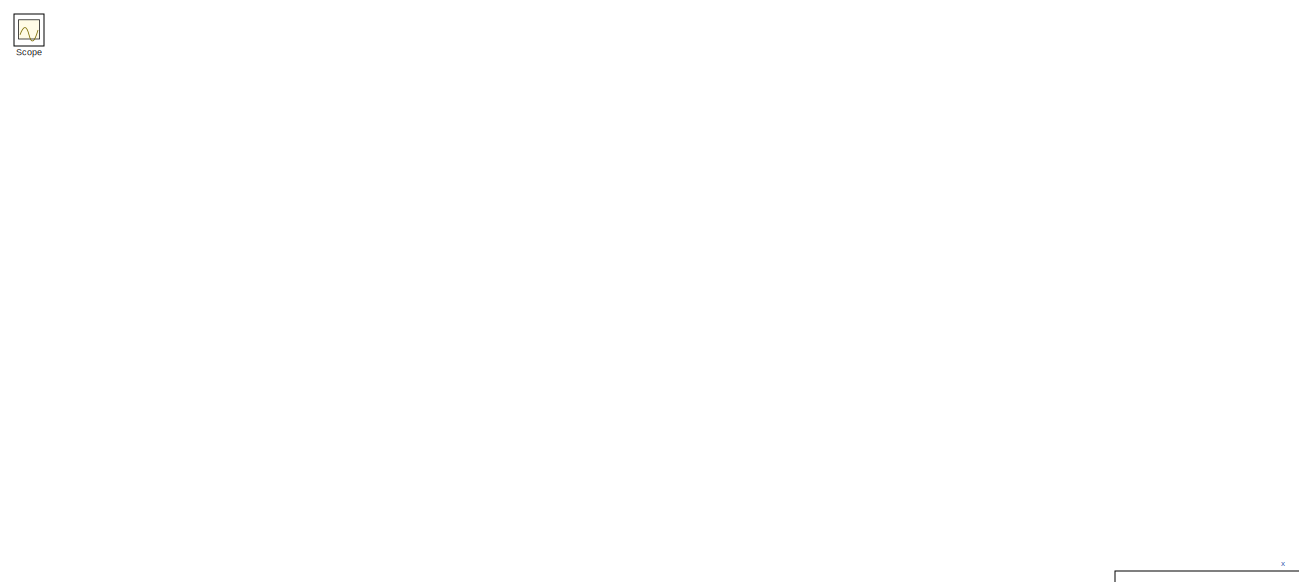
[diagram: root canvas - part 1/2, full width, top band]
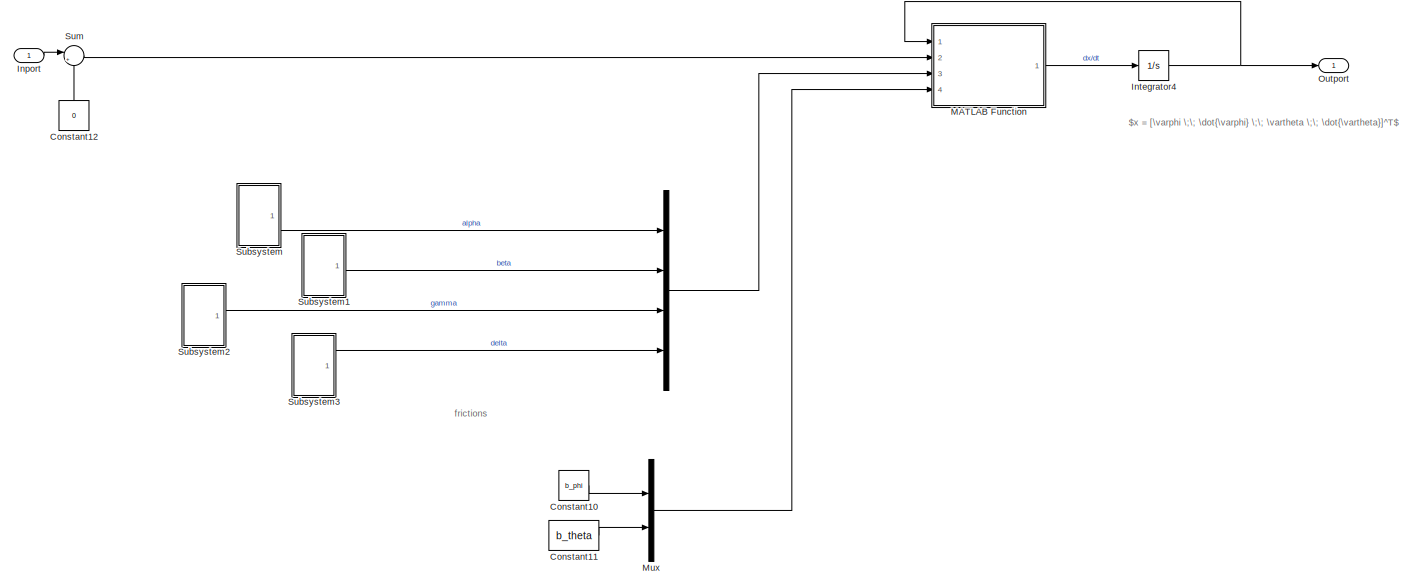
[diagram: root canvas - part 2/2, full width, bottom band]
MODEL slx_26adc013560a
KIND model
CONFIG AbsTol = auto
CONFIG EnableMultiTasking = off
CONFIG FixedStep = auto
CONFIG MaxStep = auto
CONFIG MinStep = auto
CONFIG PostLoadFcn = m_p = 0.3;  %pendulum mass [kg]\nl_p = 0.205;  %pendulum length [m]\nm_b = 1;  %brace mass [kg]\nl_b = 0.3;  %brace length [m]\nM = 1;  %puntiform mass [kg]\nJ = 0.1531;  %moment of inertia [kg*m^2]\ng = 9.81;  %gravity [m*s^-2]\n\nk = 2.7;  %torque drive constant [Nm/V] \nk_i = 2.667;  %drive transconductance constant [A/V]\nk_g = 15;  %trasmission ratio\nk_t = 0.1;  %torque motor constant [Nm/A]\n\nb_phi = 0...<+105ch>
CONFIG RelTol = 1e-6
CONFIG SampleTimeConstraint = Unconstrained
CONFIG Solver = VariableStepAuto
CONFIG SolverName = VariableStepAuto
CONFIG StartTime = 0.0
CONFIG StopTime = 10.0
BLOCK [Mux]  
  DisplayOption = bar
  Ports = [4, 1]
BLOCK [Constant] Constant10
  Value = b_phi
BLOCK [Constant] Constant11
  Value = b_theta
BLOCK [Constant] Constant12
  NameLocation = right
  Value = 0
BLOCK [Inport] Inport
BLOCK [Integrator] Integrator4
  InitialCondition = x0
  Ports = [1, 1]
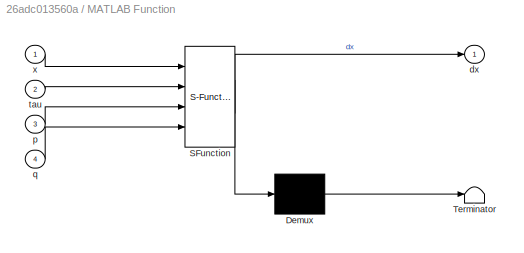
BLOCK [SubSystem] MATLAB Function
  ErrorFcn = Stateflow.Translate.translate
  PermitHierarchicalResolution = ExplicitOnly
  Ports = [4, 1]
  RequestExecContextInheritance = off
  SFBlockType = MATLAB Function
  TreatAsAtomicUnit = on
BLOCK [Demux] MATLAB Function/ Demux 
  Outputs = 1
  Ports = [1, 1]
BLOCK [S-Function] MATLAB Function/ SFunction 
  EnableBusSupport = on
  FunctionName = sf_sfun
  PortCounts = [4 2]
  Ports = [4, 2]
  SFcnIsStateOwnerBlock = off
  SFunctionDeploymentMode = off
  Tag = Stateflow S-Function 2
BLOCK [Terminator] MATLAB Function/ Terminator 
BLOCK [Outport] MATLAB Function/dx
BLOCK [Inport] MATLAB Function/p
  Port = 3
BLOCK [Inport] MATLAB Function/q
  Port = 4
BLOCK [Inport] MATLAB Function/tau
  Port = 2
BLOCK [Inport] MATLAB Function/x
BLOCK [Mux] Mux
  DisplayOption = bar
  Inputs = 2
  Ports = [2, 1]
BLOCK [Outport] Outport
BLOCK [Scope] Scope
  Floating = off
  IOType = viewer
  NumInputPorts = 1
  Ports = []
  ScopeSpecificationString = Simulink.scopes.TimeScopeBlockCfg('CurrentConfiguration', extmgr.ConfigurationSet(extmgr.Configuration('Core','General UI',true),extmgr.Configuration('Core','Source UI',true),extmgr.Configuration('Sources','WiredSimulink',true),extmgr.Configuration('Visuals','Time Domain',true,'SerializedDisplays',{struct('MinYLimReal','-16.28378','MaxYLimReal','19.32414','YLabelReal','','MinYLimMag','0.00000','Ma...<+1377ch>
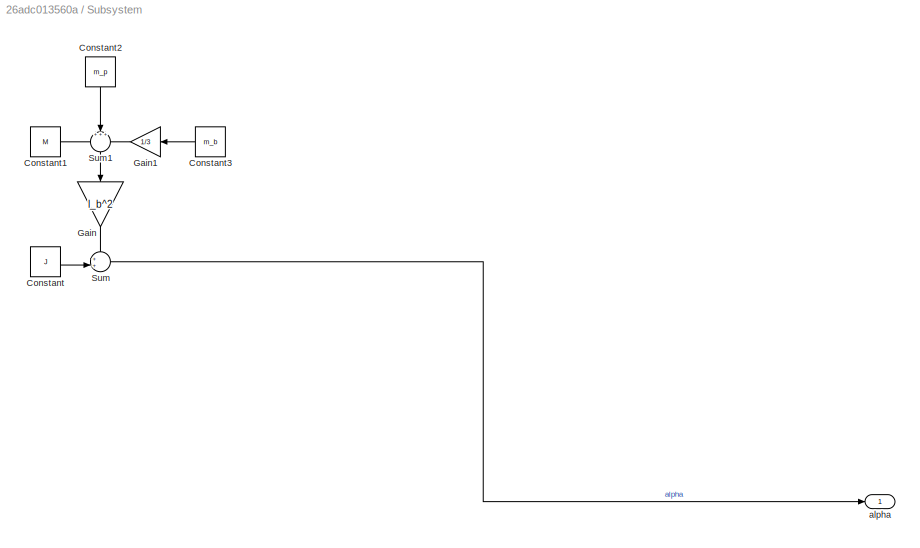
BLOCK [SubSystem] Subsystem
  Ports = [0, 1]
  RequestExecContextInheritance = off
BLOCK [Constant] Subsystem/Constant
  Value = J
BLOCK [Constant] Subsystem/Constant1
  Value = M
BLOCK [Constant] Subsystem/Constant2
  NameLocation = left
  Value = m_p
BLOCK [Constant] Subsystem/Constant3
  NameLocation = top
  Value = m_b
BLOCK [Gain] Subsystem/Gain
  Gain = l_b^2
  NameLocation = left
BLOCK [Gain] Subsystem/Gain1
  Gain = 1/3
  NameLocation = top
BLOCK [Sum] Subsystem/Sum
  Inputs = ++|
  Ports = [2, 1]
BLOCK [Sum] Subsystem/Sum1
  Inputs = +++
  NameLocation = left
  Ports = [3, 1]
BLOCK [Outport] Subsystem/alpha
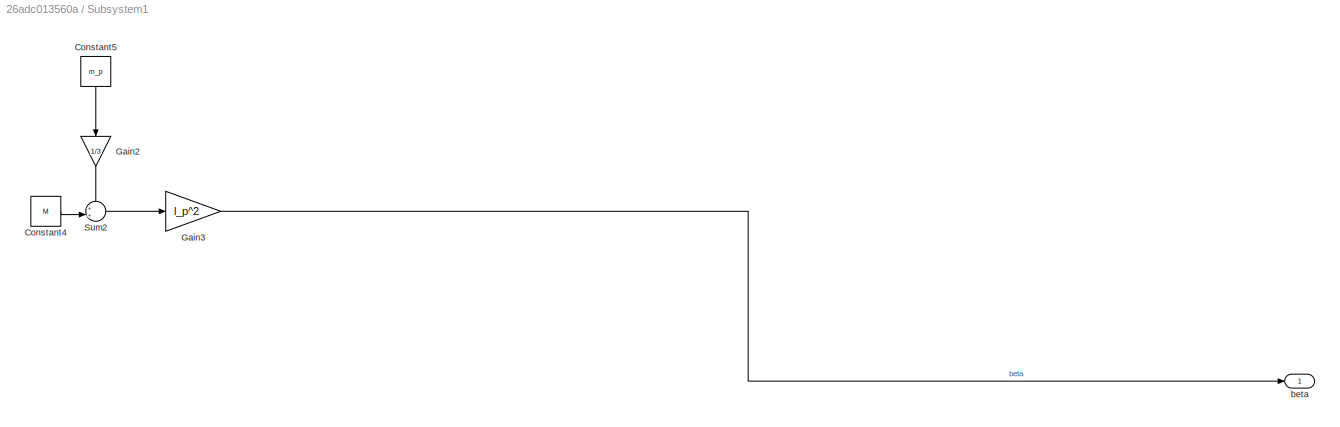
BLOCK [SubSystem] Subsystem1
  Ports = [0, 1]
  RequestExecContextInheritance = off
BLOCK [Constant] Subsystem1/Constant4
  Value = M
BLOCK [Constant] Subsystem1/Constant5
  NameLocation = left
  Value = m_p
BLOCK [Gain] Subsystem1/Gain2
  Gain = 1/3
  NameLocation = left
BLOCK [Gain] Subsystem1/Gain3
  Gain = l_p^2
BLOCK [Sum] Subsystem1/Sum2
  Inputs = ++|
  Ports = [2, 1]
BLOCK [Outport] Subsystem1/beta
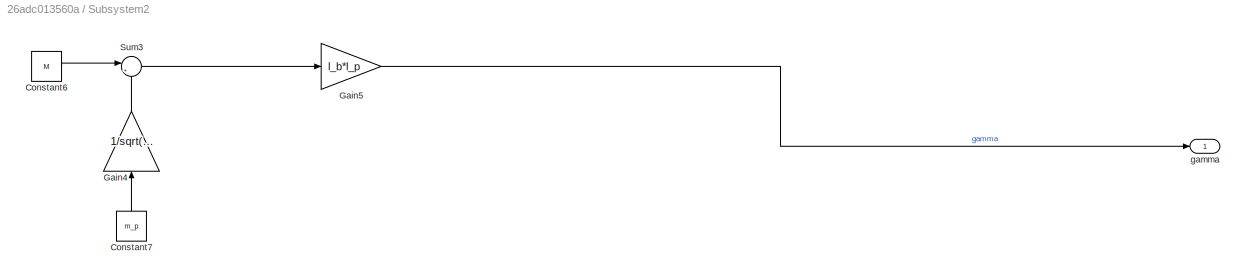
BLOCK [SubSystem] Subsystem2
  Ports = [0, 1]
  RequestExecContextInheritance = off
BLOCK [Constant] Subsystem2/Constant6
  Value = M
BLOCK [Constant] Subsystem2/Constant7
  NameLocation = right
  Value = m_p
BLOCK [Gain] Subsystem2/Gain4
  Gain = 1/sqrt(3)
  NameLocation = right
BLOCK [Gain] Subsystem2/Gain5
  Gain = l_b*l_p
BLOCK [Sum] Subsystem2/Sum3
  Inputs = |++
  Ports = [2, 1]
BLOCK [Outport] Subsystem2/gamma
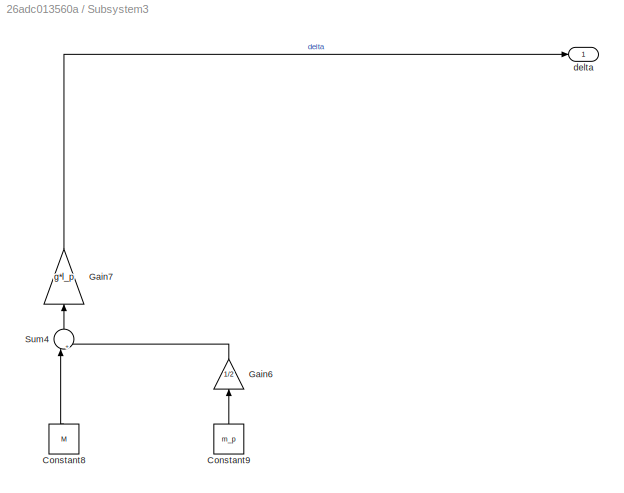
BLOCK [SubSystem] Subsystem3
  Ports = [0, 1]
  RequestExecContextInheritance = off
BLOCK [Constant] Subsystem3/Constant8
  NameLocation = right
  Value = M
BLOCK [Constant] Subsystem3/Constant9
  NameLocation = right
  Value = m_p
BLOCK [Gain] Subsystem3/Gain6
  Gain = 1/2
  NameLocation = right
BLOCK [Gain] Subsystem3/Gain7
  Gain = g*l_p
  NameLocation = right
BLOCK [Sum] Subsystem3/Sum4
  Inputs = |++
  NameLocation = right
  Ports = [2, 1]
BLOCK [Outport] Subsystem3/delta
BLOCK [Sum] Sum
  Inputs = |++
  Ports = [2, 1]
ANNOTATION (root): $x = [\varphi \;\; \dot{\varphi} \;\; \vartheta \;\; \dot{\vartheta}]^T$
ANNOTATION (root): frictions
LINE  :1 -> MATLAB Function:3
LINE Constant10:1 -> Mux:1
LINE Constant11:1 -> Mux:2
LINE Constant12:1 -> Sum:2
LINE Inport:1 -> Sum:1
NET Integrator4:1 -> MATLAB Function:1, Outport:1
LINE MATLAB Function:1 -> Integrator4:1
LINE Mux:1 -> MATLAB Function:4
LINE Subsystem/Constant1:1 -> Subsystem/Sum1:1
LINE Subsystem/Constant2:1 -> Subsystem/Sum1:2
LINE Subsystem/Constant3:1 -> Subsystem/Gain1:1
LINE Subsystem/Constant:1 -> Subsystem/Sum:2
LINE Subsystem/Gain1:1 -> Subsystem/Sum1:3
LINE Subsystem/Gain:1 -> Subsystem/Sum:1
LINE Subsystem/Sum1:1 -> Subsystem/Gain:1
LINE Subsystem/Sum:1 -> Subsystem/alpha:1
LINE Subsystem1/Constant4:1 -> Subsystem1/Sum2:2
LINE Subsystem1/Constant5:1 -> Subsystem1/Gain2:1
LINE Subsystem1/Gain2:1 -> Subsystem1/Sum2:1
LINE Subsystem1/Gain3:1 -> Subsystem1/beta:1
LINE Subsystem1/Sum2:1 -> Subsystem1/Gain3:1
LINE Subsystem1:1 ->  :2
LINE Subsystem2/Constant6:1 -> Subsystem2/Sum3:1
LINE Subsystem2/Constant7:1 -> Subsystem2/Gain4:1
LINE Subsystem2/Gain4:1 -> Subsystem2/Sum3:2
LINE Subsystem2/Gain5:1 -> Subsystem2/gamma:1
LINE Subsystem2/Sum3:1 -> Subsystem2/Gain5:1
LINE Subsystem2:1 ->  :3
LINE Subsystem3/Constant8:1 -> Subsystem3/Sum4:1
LINE Subsystem3/Constant9:1 -> Subsystem3/Gain6:1
LINE Subsystem3/Gain6:1 -> Subsystem3/Sum4:2
LINE Subsystem3/Gain7:1 -> Subsystem3/delta:1
LINE Subsystem3/Sum4:1 -> Subsystem3/Gain7:1
LINE Subsystem3:1 ->  :4
LINE Subsystem:1 ->  :1
LINE Sum:1 -> MATLAB Function:2
note: NET lines group one-source signal fan-out (src -> all destinations, sorted); 1:1 wires keep LINE
CHART MATLAB Function states=1 transitions=1
  STATE_LABEL 'eML_blk_kernel()'
  STATE_LABEL 'SCRIPT:\nfunction dx = furuta(x, tau, p, q)\n% p = parameters vector\n% q = frictions vector\n% si sconsiglia di avere variabili globali nelle function\n\n% inizialitation\ndx = zeros(4, 1);\n\n% parameters\nalpha = p(1);\nbeta = p(2);\ngamma = p(3);\ndelta = p(4);\n\n% frictions\nb_phi = q(1);\nb_theta = q(2);\n\n% state\nphi = x(1);\ndphi = x(2);\ntheta = x(3);  \ndtheta = x(4);\n\n% input\ntau_phi = tau;\n%tau_phi = tau(...<+906ch>'
CHART  states=0 transitions=0
